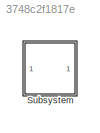
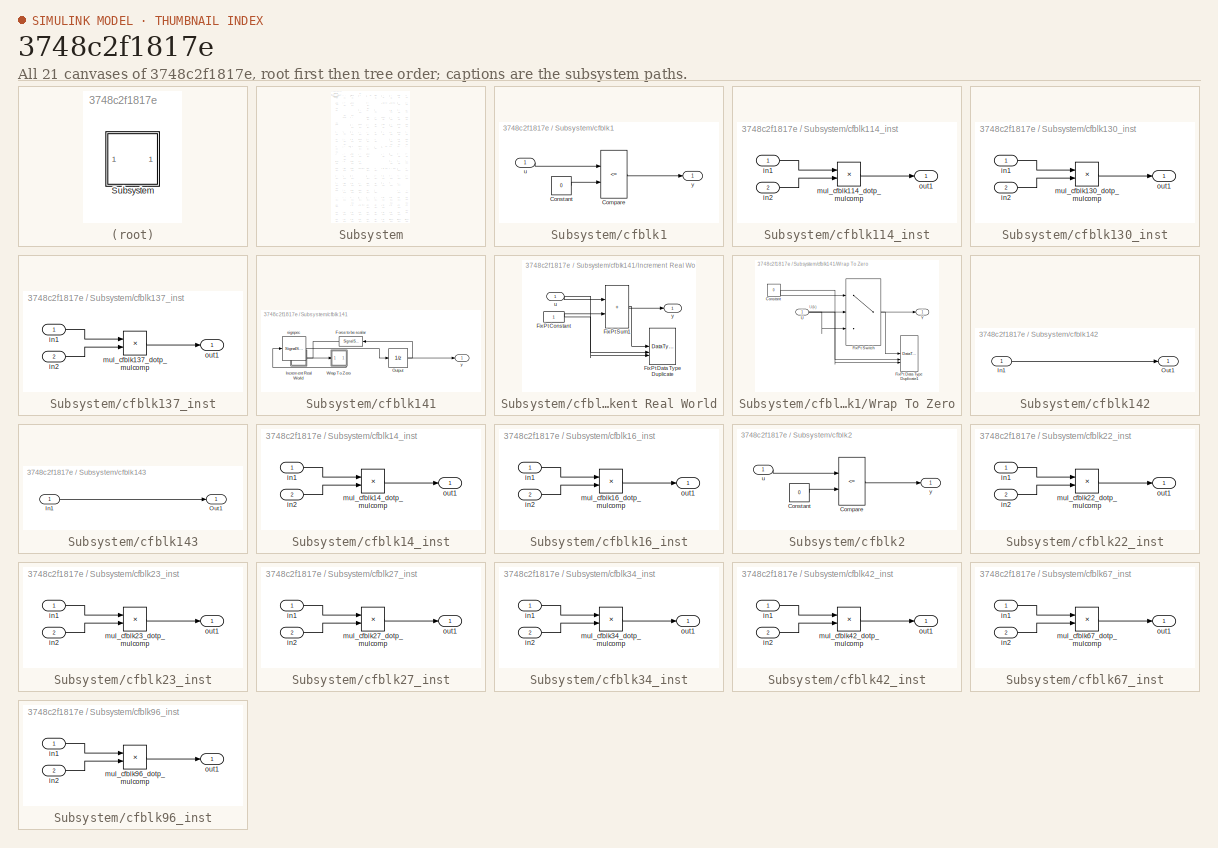
[diagram: thumbnail index - all 21 canvases of the model, root first then tree order]
MODEL slx_3748c2f1817e
KIND model
CONFIG AbsTol = auto
CONFIG EnableMultiTasking = off
CONFIG FixedStep = auto
CONFIG MaxStep = auto
CONFIG MinStep = auto
CONFIG RelTol = 1e-3
CONFIG SampleTimeConstraint = Unconstrained
CONFIG SolverName = VariableStepAuto
CONFIG StartTime = 0.0
CONFIG StopTime = 10.0
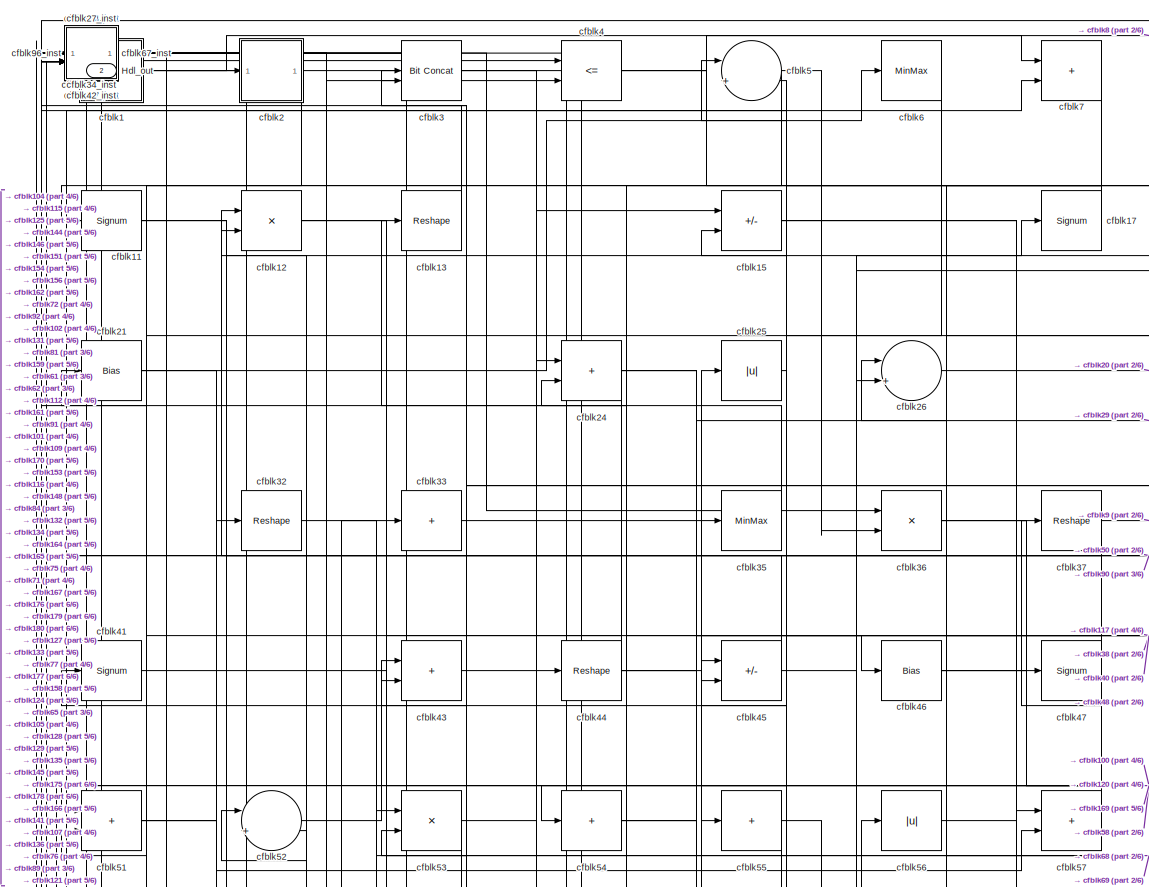
[diagram: Subsystem - part 1/6, top center region]
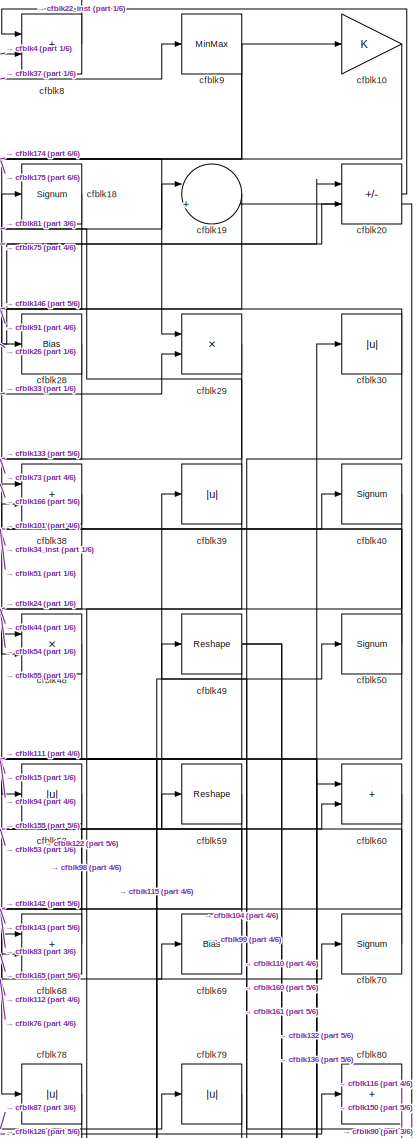
[diagram: Subsystem - part 2/6, top right region]
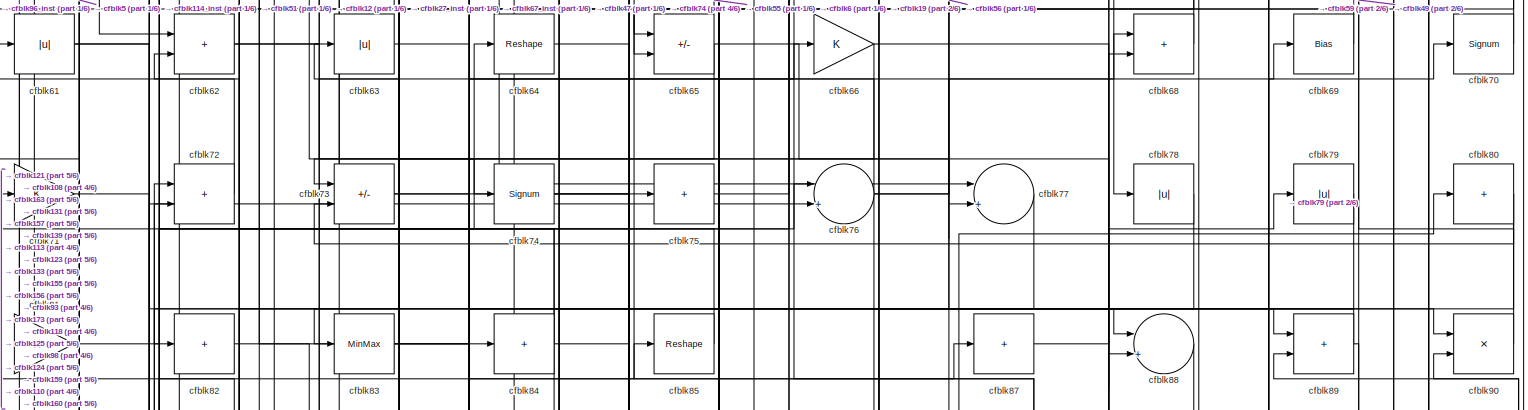
[diagram: Subsystem - part 3/6, full width, middle band]
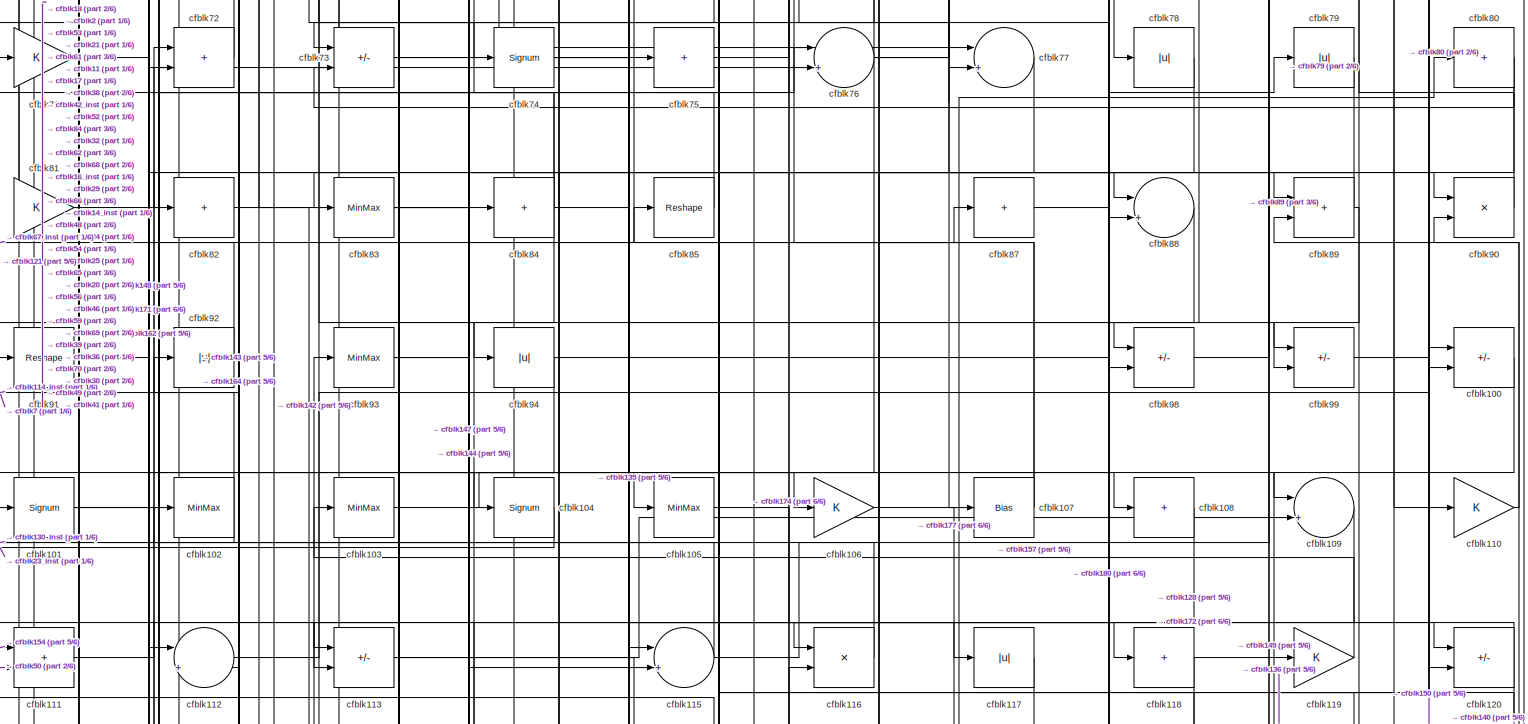
[diagram: Subsystem - part 4/6, full width, middle band]
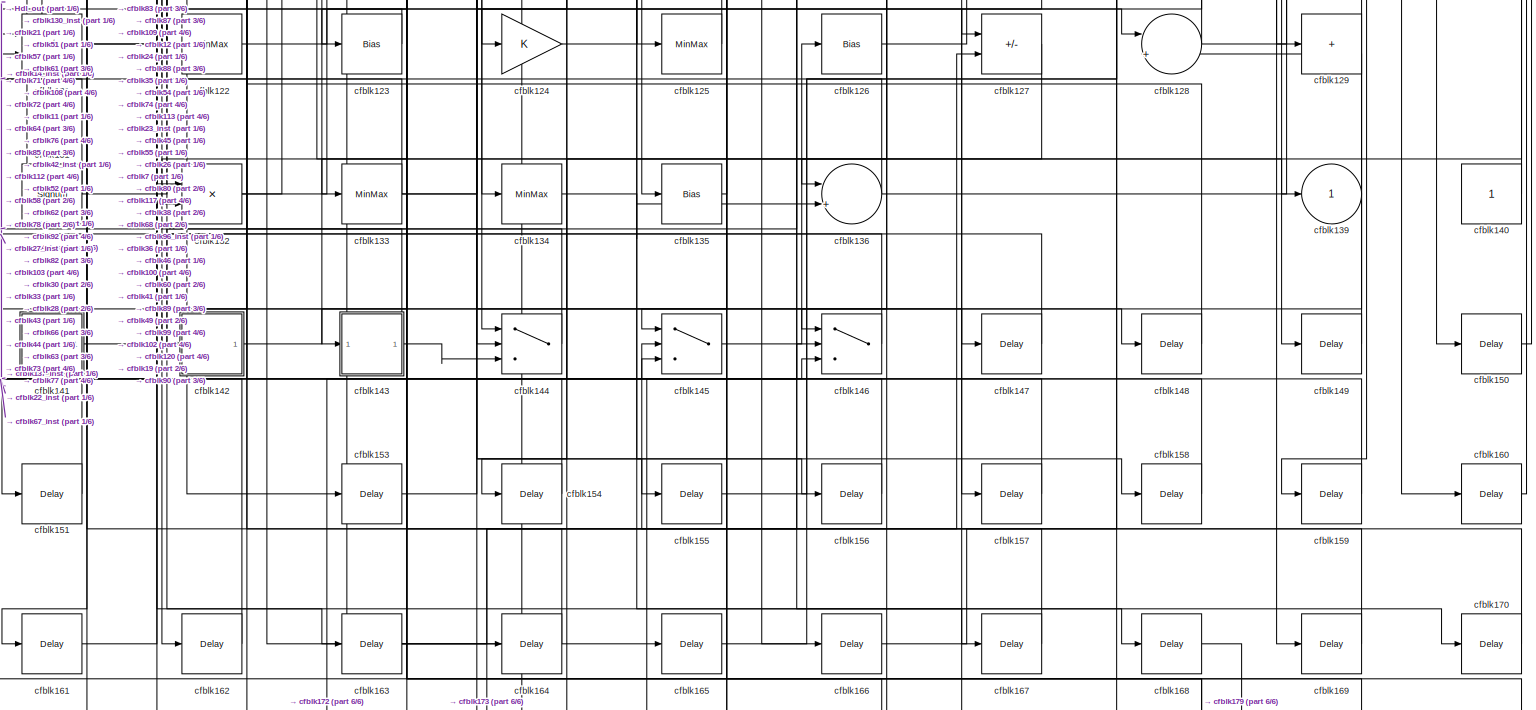
[diagram: Subsystem - part 5/6, full width, bottom band]
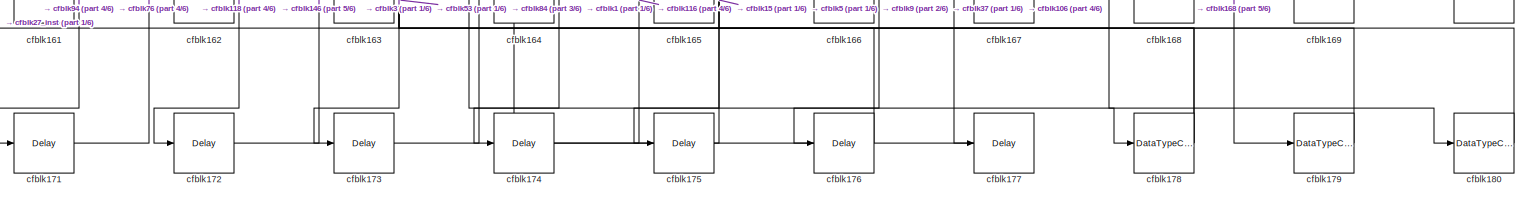
[diagram: Subsystem - part 6/6, full width, bottom band]
BLOCK [SubSystem] Subsystem
BLOCK [Outport] Subsystem/Hdl_out
  OutDataTypeStr = uint8
  Port = 2
  SampleTime = 1
BLOCK [SubSystem] Subsystem/cfblk1
BLOCK [RelationalOperator] Subsystem/cfblk1/Compare
  Operator = <=
  OutDataTypeStr = fixdt(0, 8)
BLOCK [Constant] Subsystem/cfblk1/Constant
  DisableCoverage = on
  OutDataTypeStr = Inherit: Inherit via back propagation
  PreserveConstantTs = on
  SampleTime = -1
  Value = 0
BLOCK [Inport] Subsystem/cfblk1/u
  OutDataTypeStr = uint8
  SampleTime = 1
BLOCK [Outport] Subsystem/cfblk1/y
  SampleTime = 1
BLOCK [Gain] Subsystem/cfblk10
  OutDataTypeStr = uint8
BLOCK [Sum] Subsystem/cfblk100
  IconShape = rectangular
  Inputs = +-
  OutDataTypeStr = uint8
BLOCK [Signum] Subsystem/cfblk101
BLOCK [MinMax] Subsystem/cfblk102
  OutDataTypeStr = uint8
BLOCK [MinMax] Subsystem/cfblk103
  OutDataTypeStr = uint8
BLOCK [Signum] Subsystem/cfblk104
BLOCK [MinMax] Subsystem/cfblk105
  OutDataTypeStr = uint8
BLOCK [Gain] Subsystem/cfblk106
  OutDataTypeStr = uint8
BLOCK [Bias] Subsystem/cfblk107
  Bias = 0.0
  SaturateOnIntegerOverflow = off
BLOCK [Sum] Subsystem/cfblk108
  IconShape = rectangular
  Inputs = +
  OutDataTypeStr = uint8
BLOCK [Sum] Subsystem/cfblk109
  Inputs = |++
  OutDataTypeStr = uint8
BLOCK [Signum] Subsystem/cfblk11
BLOCK [Gain] Subsystem/cfblk110
  OutDataTypeStr = uint8
BLOCK [Sum] Subsystem/cfblk111
  IconShape = rectangular
  OutDataTypeStr = uint8
BLOCK [Sum] Subsystem/cfblk112
  Inputs = |++
  OutDataTypeStr = uint8
BLOCK [Sum] Subsystem/cfblk113
  IconShape = rectangular
  Inputs = +-
  OutDataTypeStr = uint8
BLOCK [SubSystem] Subsystem/cfblk114_inst
BLOCK [Inport] Subsystem/cfblk114_inst/in1
  OutDataTypeStr = uint8
  SampleTime = 1
BLOCK [Inport] Subsystem/cfblk114_inst/in2
  OutDataTypeStr = uint8
  Port = 2
  SampleTime = 1
BLOCK [Product] Subsystem/cfblk114_inst/mul_cfblk114_dotp_mulcomp
  Inputs = **
  OutDataTypeStr = uint8
  SampleTime = 1
BLOCK [Outport] Subsystem/cfblk114_inst/out1
  OutDataTypeStr = uint8
  SampleTime = 1
BLOCK [Sum] Subsystem/cfblk115
  Inputs = |++
  OutDataTypeStr = uint8
BLOCK [Product] Subsystem/cfblk116
  Inputs = */
  OutDataTypeStr = uint8
  RndMeth = Zero
  SaturateOnIntegerOverflow = on
BLOCK [Abs] Subsystem/cfblk117
  OutDataTypeStr = uint8
  SaturateOnIntegerOverflow = off
BLOCK [Sum] Subsystem/cfblk118
  IconShape = rectangular
  Inputs = +
  OutDataTypeStr = uint8
BLOCK [Gain] Subsystem/cfblk119
  OutDataTypeStr = uint8
BLOCK [Product] Subsystem/cfblk12
  Inputs = */
  OutDataTypeStr = uint8
  RndMeth = Zero
  SaturateOnIntegerOverflow = on
BLOCK [Sum] Subsystem/cfblk120
  IconShape = rectangular
  Inputs = +-
  OutDataTypeStr = uint8
BLOCK [Sum] Subsystem/cfblk121
  IconShape = rectangular
  Inputs = +-
  OutDataTypeStr = uint8
BLOCK [MinMax] Subsystem/cfblk122
  OutDataTypeStr = uint8
BLOCK [Bias] Subsystem/cfblk123
  Bias = 0.0
  SaturateOnIntegerOverflow = off
BLOCK [Gain] Subsystem/cfblk124
  OutDataTypeStr = uint8
BLOCK [MinMax] Subsystem/cfblk125
  OutDataTypeStr = uint8
BLOCK [Bias] Subsystem/cfblk126
  Bias = 0.0
  SaturateOnIntegerOverflow = off
BLOCK [Sum] Subsystem/cfblk127
  IconShape = rectangular
  Inputs = +-
  OutDataTypeStr = uint8
BLOCK [Sum] Subsystem/cfblk128
  Inputs = |++
  OutDataTypeStr = uint8
BLOCK [Sum] Subsystem/cfblk129
  IconShape = rectangular
  Inputs = +
  OutDataTypeStr = uint8
BLOCK [Reshape] Subsystem/cfblk13
BLOCK [SubSystem] Subsystem/cfblk130_inst
BLOCK [Inport] Subsystem/cfblk130_inst/in1
  OutDataTypeStr = uint8
  SampleTime = 1
BLOCK [Inport] Subsystem/cfblk130_inst/in2
  OutDataTypeStr = uint8
  Port = 2
  SampleTime = 1
BLOCK [Product] Subsystem/cfblk130_inst/mul_cfblk130_dotp_mulcomp
  Inputs = **
  OutDataTypeStr = uint8
  SampleTime = 1
BLOCK [Outport] Subsystem/cfblk130_inst/out1
  OutDataTypeStr = uint8
  SampleTime = 1
BLOCK [Signum] Subsystem/cfblk131
BLOCK [Product] Subsystem/cfblk132
  Inputs = */
  OutDataTypeStr = uint8
  RndMeth = Zero
  SaturateOnIntegerOverflow = on
BLOCK [MinMax] Subsystem/cfblk133
  OutDataTypeStr = uint8
BLOCK [MinMax] Subsystem/cfblk134
  OutDataTypeStr = uint8
BLOCK [Bias] Subsystem/cfblk135
  Bias = 0.0
  SaturateOnIntegerOverflow = off
BLOCK [Sum] Subsystem/cfblk136
  Inputs = |++
  OutDataTypeStr = uint8
BLOCK [SubSystem] Subsystem/cfblk137_inst
BLOCK [Inport] Subsystem/cfblk137_inst/in1
  OutDataTypeStr = uint8
  SampleTime = 1
BLOCK [Inport] Subsystem/cfblk137_inst/in2
  OutDataTypeStr = uint8
  Port = 2
  SampleTime = 1
BLOCK [Product] Subsystem/cfblk137_inst/mul_cfblk137_dotp_mulcomp
  Inputs = **
  OutDataTypeStr = uint8
  SampleTime = 1
BLOCK [Outport] Subsystem/cfblk137_inst/out1
  OutDataTypeStr = uint8
  SampleTime = 1
BLOCK [Outport] Subsystem/cfblk139
  OutDataTypeStr = uint8
  SampleTime = 1
  VectorParamsAs1DForOutWhenUnconnected = off
BLOCK [Constant] Subsystem/cfblk140
  OutDataTypeStr = uint8
  SampleTime = -1
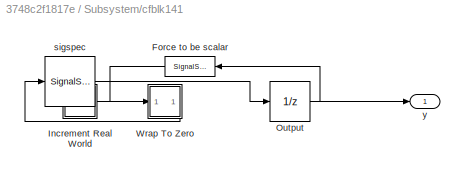
BLOCK [SubSystem] Subsystem/cfblk141
BLOCK [SignalSpecification] Subsystem/cfblk141/Force to be scalar
  Dimensions = 1
  DisableCoverage = on
BLOCK [SubSystem] Subsystem/cfblk141/Increment Real World
BLOCK [Constant] Subsystem/cfblk141/Increment Real World/FixPt Constant
  DisableCoverage = on
  OutDataTypeStr = Inherit: Inherit via back propagation
  SampleTime = -1
BLOCK [DataTypeDuplicate] Subsystem/cfblk141/Increment Real World/FixPt Data Type Duplicate
  DisableCoverage = on
  NumInputPorts = 3
BLOCK [Sum] Subsystem/cfblk141/Increment Real World/FixPt Sum1
  IconShape = rectangular
  InputSameDT = on
  LockScale = on
  OutDataTypeStr = Inherit: Inherit via back propagation
BLOCK [Inport] Subsystem/cfblk141/Increment Real World/u
  OutDataTypeStr = uint16
  SampleTime = 1
BLOCK [Outport] Subsystem/cfblk141/Increment Real World/y
  SampleTime = 1
BLOCK [UnitDelay] Subsystem/cfblk141/Output
  HasFrameUpgradeWarning = on
  InitialCondition = 0.0
  SampleTime = tsamp
BLOCK [SubSystem] Subsystem/cfblk141/Wrap To Zero
BLOCK [Constant] Subsystem/cfblk141/Wrap To Zero/Constant
  DisableCoverage = on
  OutDataTypeStr = Inherit: Inherit via back propagation
  SampleTime = -1
  Value = 0
BLOCK [DataTypeDuplicate] Subsystem/cfblk141/Wrap To Zero/FixPt Data Type Duplicate1
  DisableCoverage = on
  NumInputPorts = 3
BLOCK [Switch] Subsystem/cfblk141/Wrap To Zero/FixPt Switch
  Criteria = u2 > Threshold
  InputSameDT = off
  OutDataTypeStr = Inherit: Inherit via back propagation
  SaturateOnIntegerOverflow = off
  Threshold = Threshold
  ZeroCross = off
BLOCK [Inport] Subsystem/cfblk141/Wrap To Zero/U
  OutDataTypeStr = uint16
  SampleTime = 1
BLOCK [Outport] Subsystem/cfblk141/Wrap To Zero/Y
  SampleTime = 1
BLOCK [SignalSpecification] Subsystem/cfblk141/sigspec
  Dimensions = 1
  OutDataTypeStr = uint16
BLOCK [Outport] Subsystem/cfblk141/y
  SampleTime = 1
BLOCK [SubSystem] Subsystem/cfblk142
BLOCK [Inport] Subsystem/cfblk142/In1
  OutDataTypeStr = uint8
  PortDimensions = 1
  SampleTime = 1
BLOCK [Outport] Subsystem/cfblk142/Out1
  SampleTime = 1
BLOCK [SubSystem] Subsystem/cfblk143
BLOCK [Inport] Subsystem/cfblk143/In1
  OutDataTypeStr = uint8
  PortDimensions = 1
  SampleTime = 1
BLOCK [Outport] Subsystem/cfblk143/Out1
  SampleTime = 1
BLOCK [Switch] Subsystem/cfblk144
  InputSameDT = off
  OutDataTypeStr = uint8
  SaturateOnIntegerOverflow = off
BLOCK [Switch] Subsystem/cfblk145
  InputSameDT = off
  OutDataTypeStr = uint8
  SaturateOnIntegerOverflow = off
BLOCK [Switch] Subsystem/cfblk146
  InputSameDT = off
  OutDataTypeStr = uint8
  SaturateOnIntegerOverflow = off
BLOCK [Delay] Subsystem/cfblk147
  InputPortMap = u0
  SampleTime = 1
BLOCK [Delay] Subsystem/cfblk148
  InputPortMap = u0
  SampleTime = 1
BLOCK [Delay] Subsystem/cfblk149
  InputPortMap = u0
  SampleTime = 1
BLOCK [SubSystem] Subsystem/cfblk14_inst
BLOCK [Inport] Subsystem/cfblk14_inst/in1
  OutDataTypeStr = uint8
  SampleTime = 1
BLOCK [Inport] Subsystem/cfblk14_inst/in2
  OutDataTypeStr = uint8
  Port = 2
  SampleTime = 1
BLOCK [Product] Subsystem/cfblk14_inst/mul_cfblk14_dotp_mulcomp
  Inputs = **
  OutDataTypeStr = uint8
  SampleTime = 1
BLOCK [Outport] Subsystem/cfblk14_inst/out1
  OutDataTypeStr = uint8
  SampleTime = 1
BLOCK [Sum] Subsystem/cfblk15
  IconShape = rectangular
  Inputs = +-
  OutDataTypeStr = uint8
BLOCK [Delay] Subsystem/cfblk150
  InputPortMap = u0
  SampleTime = 1
BLOCK [Delay] Subsystem/cfblk151
  InputPortMap = u0
  SampleTime = 1
BLOCK [Delay] Subsystem/cfblk153
  InputPortMap = u0
  SampleTime = 1
BLOCK [Delay] Subsystem/cfblk154
  InputPortMap = u0
  SampleTime = 1
BLOCK [Delay] Subsystem/cfblk155
  InputPortMap = u0
  SampleTime = 1
BLOCK [Delay] Subsystem/cfblk156
  InputPortMap = u0
  SampleTime = 1
BLOCK [Delay] Subsystem/cfblk157
  InputPortMap = u0
  SampleTime = 1
BLOCK [Delay] Subsystem/cfblk158
  InputPortMap = u0
  SampleTime = 1
BLOCK [Delay] Subsystem/cfblk159
  InputPortMap = u0
  SampleTime = 1
BLOCK [Delay] Subsystem/cfblk160
  InputPortMap = u0
  SampleTime = 1
BLOCK [Delay] Subsystem/cfblk161
  InputPortMap = u0
  SampleTime = 1
BLOCK [Delay] Subsystem/cfblk162
  InputPortMap = u0
  SampleTime = 1
BLOCK [Delay] Subsystem/cfblk163
  InputPortMap = u0
  SampleTime = 1
BLOCK [Delay] Subsystem/cfblk164
  InputPortMap = u0
  SampleTime = 1
BLOCK [Delay] Subsystem/cfblk165
  InputPortMap = u0
  SampleTime = 1
BLOCK [Delay] Subsystem/cfblk166
  InputPortMap = u0
  SampleTime = 1
BLOCK [Delay] Subsystem/cfblk167
  InputPortMap = u0
  SampleTime = 1
BLOCK [Delay] Subsystem/cfblk168
  InputPortMap = u0
  SampleTime = 1
BLOCK [Delay] Subsystem/cfblk169
  InputPortMap = u0
  SampleTime = 1
BLOCK [SubSystem] Subsystem/cfblk16_inst
BLOCK [Inport] Subsystem/cfblk16_inst/in1
  OutDataTypeStr = uint8
  SampleTime = 1
BLOCK [Inport] Subsystem/cfblk16_inst/in2
  OutDataTypeStr = uint8
  Port = 2
  SampleTime = 1
BLOCK [Product] Subsystem/cfblk16_inst/mul_cfblk16_dotp_mulcomp
  Inputs = **
  OutDataTypeStr = uint8
  SampleTime = 1
BLOCK [Outport] Subsystem/cfblk16_inst/out1
  OutDataTypeStr = uint8
  SampleTime = 1
BLOCK [Signum] Subsystem/cfblk17
BLOCK [Delay] Subsystem/cfblk170
  InputPortMap = u0
  SampleTime = 1
BLOCK [Delay] Subsystem/cfblk171
  InputPortMap = u0
  SampleTime = 1
BLOCK [Delay] Subsystem/cfblk172
  InputPortMap = u0
  SampleTime = 1
BLOCK [Delay] Subsystem/cfblk173
  InputPortMap = u0
  SampleTime = 1
BLOCK [Delay] Subsystem/cfblk174
  InputPortMap = u0
  SampleTime = 1
BLOCK [Delay] Subsystem/cfblk175
  InputPortMap = u0
  SampleTime = 1
BLOCK [Delay] Subsystem/cfblk176
  InputPortMap = u0
  SampleTime = 1
BLOCK [Delay] Subsystem/cfblk177
  InputPortMap = u0
  SampleTime = 1
BLOCK [DataTypeConversion] Subsystem/cfblk178
  OutDataTypeStr = uint8
  RndMeth = Floor
  SaturateOnIntegerOverflow = off
BLOCK [DataTypeConversion] Subsystem/cfblk179
  OutDataTypeStr = uint8
  RndMeth = Floor
  SaturateOnIntegerOverflow = off
BLOCK [Signum] Subsystem/cfblk18
BLOCK [DataTypeConversion] Subsystem/cfblk180
  OutDataTypeStr = uint8
  RndMeth = Floor
  SaturateOnIntegerOverflow = off
BLOCK [Sum] Subsystem/cfblk19
  Inputs = |++
  OutDataTypeStr = uint8
BLOCK [SubSystem] Subsystem/cfblk2
BLOCK [RelationalOperator] Subsystem/cfblk2/Compare
  Operator = <=
  OutDataTypeStr = fixdt(0, 8)
BLOCK [Constant] Subsystem/cfblk2/Constant
  DisableCoverage = on
  OutDataTypeStr = Inherit: Inherit via back propagation
  PreserveConstantTs = on
  SampleTime = -1
  Value = 0
BLOCK [Inport] Subsystem/cfblk2/u
  OutDataTypeStr = uint8
  SampleTime = 1
BLOCK [Outport] Subsystem/cfblk2/y
  SampleTime = 1
BLOCK [Sum] Subsystem/cfblk20
  IconShape = rectangular
  Inputs = +-
  OutDataTypeStr = uint8
BLOCK [Bias] Subsystem/cfblk21
  Bias = 0.0
  SaturateOnIntegerOverflow = off
BLOCK [SubSystem] Subsystem/cfblk22_inst
BLOCK [Inport] Subsystem/cfblk22_inst/in1
  OutDataTypeStr = uint8
  SampleTime = 1
BLOCK [Inport] Subsystem/cfblk22_inst/in2
  OutDataTypeStr = uint8
  Port = 2
  SampleTime = 1
BLOCK [Product] Subsystem/cfblk22_inst/mul_cfblk22_dotp_mulcomp
  Inputs = **
  OutDataTypeStr = uint8
  SampleTime = 1
BLOCK [Outport] Subsystem/cfblk22_inst/out1
  OutDataTypeStr = uint8
  SampleTime = 1
BLOCK [SubSystem] Subsystem/cfblk23_inst
BLOCK [Inport] Subsystem/cfblk23_inst/in1
  OutDataTypeStr = uint8
  SampleTime = 1
BLOCK [Inport] Subsystem/cfblk23_inst/in2
  OutDataTypeStr = uint8
  Port = 2
  SampleTime = 1
BLOCK [Product] Subsystem/cfblk23_inst/mul_cfblk23_dotp_mulcomp
  Inputs = **
  OutDataTypeStr = uint8
  SampleTime = 1
BLOCK [Outport] Subsystem/cfblk23_inst/out1
  OutDataTypeStr = uint8
  SampleTime = 1
BLOCK [Sum] Subsystem/cfblk24
  IconShape = rectangular
  OutDataTypeStr = uint8
BLOCK [Abs] Subsystem/cfblk25
  OutDataTypeStr = uint8
  SaturateOnIntegerOverflow = off
BLOCK [Sum] Subsystem/cfblk26
  Inputs = |++
  OutDataTypeStr = uint8
BLOCK [SubSystem] Subsystem/cfblk27_inst
BLOCK [Inport] Subsystem/cfblk27_inst/in1
  OutDataTypeStr = uint8
  SampleTime = 1
BLOCK [Inport] Subsystem/cfblk27_inst/in2
  OutDataTypeStr = uint8
  Port = 2
  SampleTime = 1
BLOCK [Product] Subsystem/cfblk27_inst/mul_cfblk27_dotp_mulcomp
  Inputs = **
  OutDataTypeStr = uint8
  SampleTime = 1
BLOCK [Outport] Subsystem/cfblk27_inst/out1
  OutDataTypeStr = uint8
  SampleTime = 1
BLOCK [Bias] Subsystem/cfblk28
  Bias = 0.0
  SaturateOnIntegerOverflow = off
BLOCK [Product] Subsystem/cfblk29
  Inputs = */
  OutDataTypeStr = uint8
  RndMeth = Zero
  SaturateOnIntegerOverflow = on
BLOCK [Reference] Subsystem/cfblk3  REF=hdlsllib/Logic and Bit
Operations/Bit Concat
  SourceBlock = hdlsllib/Logic and Bit\nOperations/Bit Concat
  SourceType = Bit Concat
BLOCK [Abs] Subsystem/cfblk30
  OutDataTypeStr = uint8
  SaturateOnIntegerOverflow = off
BLOCK [Reshape] Subsystem/cfblk32
BLOCK [Sum] Subsystem/cfblk33
  IconShape = rectangular
  Inputs = +
  OutDataTypeStr = uint8
BLOCK [SubSystem] Subsystem/cfblk34_inst
BLOCK [Inport] Subsystem/cfblk34_inst/in1
  OutDataTypeStr = uint8
  SampleTime = 1
BLOCK [Inport] Subsystem/cfblk34_inst/in2
  OutDataTypeStr = uint8
  Port = 2
  SampleTime = 1
BLOCK [Product] Subsystem/cfblk34_inst/mul_cfblk34_dotp_mulcomp
  Inputs = **
  OutDataTypeStr = uint8
  SampleTime = 1
BLOCK [Outport] Subsystem/cfblk34_inst/out1
  OutDataTypeStr = uint8
  SampleTime = 1
BLOCK [MinMax] Subsystem/cfblk35
  OutDataTypeStr = uint8
BLOCK [Product] Subsystem/cfblk36
  Inputs = */
  OutDataTypeStr = uint8
  RndMeth = Zero
  SaturateOnIntegerOverflow = on
BLOCK [Reshape] Subsystem/cfblk37
BLOCK [Sum] Subsystem/cfblk38
  IconShape = rectangular
  OutDataTypeStr = uint8
BLOCK [Abs] Subsystem/cfblk39
  OutDataTypeStr = uint8
  SaturateOnIntegerOverflow = off
BLOCK [RelationalOperator] Subsystem/cfblk4
  InputSameDT = off
  Operator = <=
  OutDataTypeStr = boolean
BLOCK [Signum] Subsystem/cfblk40
BLOCK [Signum] Subsystem/cfblk41
BLOCK [SubSystem] Subsystem/cfblk42_inst
BLOCK [Inport] Subsystem/cfblk42_inst/in1
  OutDataTypeStr = uint8
  SampleTime = 1
BLOCK [Inport] Subsystem/cfblk42_inst/in2
  OutDataTypeStr = uint8
  Port = 2
  SampleTime = 1
BLOCK [Product] Subsystem/cfblk42_inst/mul_cfblk42_dotp_mulcomp
  Inputs = **
  OutDataTypeStr = uint8
  SampleTime = 1
BLOCK [Outport] Subsystem/cfblk42_inst/out1
  OutDataTypeStr = uint8
  SampleTime = 1
BLOCK [Sum] Subsystem/cfblk43
  IconShape = rectangular
  OutDataTypeStr = uint8
BLOCK [Reshape] Subsystem/cfblk44
BLOCK [Sum] Subsystem/cfblk45
  IconShape = rectangular
  Inputs = +-
  OutDataTypeStr = uint8
BLOCK [Bias] Subsystem/cfblk46
  Bias = 0.0
  SaturateOnIntegerOverflow = off
BLOCK [Signum] Subsystem/cfblk47
BLOCK [Product] Subsystem/cfblk48
  Inputs = */
  OutDataTypeStr = uint8
  RndMeth = Zero
  SaturateOnIntegerOverflow = on
BLOCK [Reshape] Subsystem/cfblk49
BLOCK [Sum] Subsystem/cfblk5
  Inputs = |++
  OutDataTypeStr = uint8
BLOCK [Signum] Subsystem/cfblk50
BLOCK [Sum] Subsystem/cfblk51
  IconShape = rectangular
  OutDataTypeStr = uint8
BLOCK [Sum] Subsystem/cfblk52
  Inputs = |++
  OutDataTypeStr = uint8
BLOCK [Product] Subsystem/cfblk53
  Inputs = */
  OutDataTypeStr = uint8
  RndMeth = Zero
  SaturateOnIntegerOverflow = on
BLOCK [Sum] Subsystem/cfblk54
  IconShape = rectangular
  Inputs = +
  OutDataTypeStr = uint8
BLOCK [Sum] Subsystem/cfblk55
  IconShape = rectangular
  Inputs = +
  OutDataTypeStr = uint8
BLOCK [Abs] Subsystem/cfblk56
  OutDataTypeStr = uint8
  SaturateOnIntegerOverflow = off
BLOCK [Sum] Subsystem/cfblk57
  IconShape = rectangular
  OutDataTypeStr = uint8
BLOCK [Abs] Subsystem/cfblk58
  OutDataTypeStr = uint8
  SaturateOnIntegerOverflow = off
BLOCK [Reshape] Subsystem/cfblk59
BLOCK [MinMax] Subsystem/cfblk6
  OutDataTypeStr = uint8
BLOCK [Sum] Subsystem/cfblk60
  IconShape = rectangular
  OutDataTypeStr = uint8
BLOCK [Abs] Subsystem/cfblk61
  OutDataTypeStr = uint8
  SaturateOnIntegerOverflow = off
BLOCK [Sum] Subsystem/cfblk62
  IconShape = rectangular
  OutDataTypeStr = uint8
BLOCK [Abs] Subsystem/cfblk63
  OutDataTypeStr = uint8
  SaturateOnIntegerOverflow = off
BLOCK [Reshape] Subsystem/cfblk64
BLOCK [Sum] Subsystem/cfblk65
  IconShape = rectangular
  Inputs = +-
  OutDataTypeStr = uint8
BLOCK [Gain] Subsystem/cfblk66
  OutDataTypeStr = uint8
BLOCK [SubSystem] Subsystem/cfblk67_inst
BLOCK [Inport] Subsystem/cfblk67_inst/in1
  OutDataTypeStr = uint8
  SampleTime = 1
BLOCK [Inport] Subsystem/cfblk67_inst/in2
  OutDataTypeStr = uint8
  Port = 2
  SampleTime = 1
BLOCK [Product] Subsystem/cfblk67_inst/mul_cfblk67_dotp_mulcomp
  Inputs = **
  OutDataTypeStr = uint8
  SampleTime = 1
BLOCK [Outport] Subsystem/cfblk67_inst/out1
  OutDataTypeStr = uint8
  SampleTime = 1
BLOCK [Sum] Subsystem/cfblk68
  IconShape = rectangular
  OutDataTypeStr = uint8
BLOCK [Bias] Subsystem/cfblk69
  Bias = 0.0
  SaturateOnIntegerOverflow = off
BLOCK [Sum] Subsystem/cfblk7
  IconShape = rectangular
  OutDataTypeStr = uint8
BLOCK [Signum] Subsystem/cfblk70
BLOCK [Gain] Subsystem/cfblk71
  OutDataTypeStr = uint8
BLOCK [Sum] Subsystem/cfblk72
  IconShape = rectangular
  OutDataTypeStr = uint8
BLOCK [Sum] Subsystem/cfblk73
  IconShape = rectangular
  Inputs = +-
  OutDataTypeStr = uint8
BLOCK [Signum] Subsystem/cfblk74
BLOCK [Sum] Subsystem/cfblk75
  IconShape = rectangular
  Inputs = +
  OutDataTypeStr = uint8
BLOCK [Sum] Subsystem/cfblk76
  Inputs = |++
  OutDataTypeStr = uint8
BLOCK [Sum] Subsystem/cfblk77
  Inputs = |++
  OutDataTypeStr = uint8
BLOCK [Abs] Subsystem/cfblk78
  OutDataTypeStr = uint8
  SaturateOnIntegerOverflow = off
BLOCK [Abs] Subsystem/cfblk79
  OutDataTypeStr = uint8
  SaturateOnIntegerOverflow = off
BLOCK [Sum] Subsystem/cfblk8
  IconShape = rectangular
  OutDataTypeStr = uint8
BLOCK [Sum] Subsystem/cfblk80
  IconShape = rectangular
  Inputs = +
  OutDataTypeStr = uint8
BLOCK [Gain] Subsystem/cfblk81
  OutDataTypeStr = uint8
BLOCK [Sum] Subsystem/cfblk82
  IconShape = rectangular
  Inputs = +
  OutDataTypeStr = uint8
BLOCK [MinMax] Subsystem/cfblk83
  OutDataTypeStr = uint8
BLOCK [Sum] Subsystem/cfblk84
  IconShape = rectangular
  Inputs = +
  OutDataTypeStr = uint8
BLOCK [Reshape] Subsystem/cfblk85
BLOCK [Sum] Subsystem/cfblk87
  IconShape = rectangular
  Inputs = +
  OutDataTypeStr = uint8
BLOCK [Sum] Subsystem/cfblk88
  Inputs = |++
  OutDataTypeStr = uint8
BLOCK [Sum] Subsystem/cfblk89
  IconShape = rectangular
  OutDataTypeStr = uint8
BLOCK [MinMax] Subsystem/cfblk9
  OutDataTypeStr = uint8
BLOCK [Product] Subsystem/cfblk90
  Inputs = */
  OutDataTypeStr = uint8
  RndMeth = Zero
  SaturateOnIntegerOverflow = on
BLOCK [Reshape] Subsystem/cfblk91
BLOCK [Abs] Subsystem/cfblk92
  OutDataTypeStr = uint8
  SaturateOnIntegerOverflow = off
BLOCK [MinMax] Subsystem/cfblk93
  OutDataTypeStr = uint8
BLOCK [Abs] Subsystem/cfblk94
  OutDataTypeStr = uint8
  SaturateOnIntegerOverflow = off
BLOCK [SubSystem] Subsystem/cfblk96_inst
BLOCK [Inport] Subsystem/cfblk96_inst/in1
  OutDataTypeStr = uint8
  SampleTime = 1
BLOCK [Inport] Subsystem/cfblk96_inst/in2
  OutDataTypeStr = uint8
  Port = 2
  SampleTime = 1
BLOCK [Product] Subsystem/cfblk96_inst/mul_cfblk96_dotp_mulcomp
  Inputs = **
  OutDataTypeStr = uint8
  SampleTime = 1
BLOCK [Outport] Subsystem/cfblk96_inst/out1
  OutDataTypeStr = uint8
  SampleTime = 1
BLOCK [Sum] Subsystem/cfblk98
  IconShape = rectangular
  Inputs = +-
  OutDataTypeStr = uint8
BLOCK [Sum] Subsystem/cfblk99
  IconShape = rectangular
  Inputs = +-
  OutDataTypeStr = uint8
ANNOTATION Subsystem/cfblk141/Wrap To Zero: U(k)
LINE Subsystem/cfblk100:1 -> Subsystem/cfblk149:1
NET Subsystem/cfblk101:1 -> Subsystem/cfblk17:1, Subsystem/cfblk38:2
NET Subsystem/cfblk102:1 -> Subsystem/cfblk114_inst:2, Subsystem/cfblk7:2
LINE Subsystem/cfblk103:1 -> Subsystem/cfblk106:1
LINE Subsystem/cfblk104:1 -> Subsystem/cfblk23_inst:1
LINE Subsystem/cfblk105:1 -> Subsystem/cfblk120:1
LINE Subsystem/cfblk106:1 -> Subsystem/cfblk177:1
NET Subsystem/cfblk107:1 -> Subsystem/cfblk25:1, Subsystem/cfblk56:1
LINE Subsystem/cfblk108:1 -> Subsystem/cfblk162:1
LINE Subsystem/cfblk109:1 -> Subsystem/cfblk144:1
LINE Subsystem/cfblk10:1 -> Subsystem/cfblk78:1
LINE Subsystem/cfblk110:1 -> Subsystem/cfblk89:2
LINE Subsystem/cfblk111:1 -> Subsystem/cfblk72:1
LINE Subsystem/cfblk112:1 -> Subsystem/cfblk68:1
NET Subsystem/cfblk113:1 -> Subsystem/cfblk109:2, Subsystem/cfblk135:1
LINE Subsystem/cfblk114_inst/in1:1 -> Subsystem/cfblk114_inst/mul_cfblk114_dotp_mulcomp:1
LINE Subsystem/cfblk114_inst/in2:1 -> Subsystem/cfblk114_inst/mul_cfblk114_dotp_mulcomp:2
LINE Subsystem/cfblk114_inst/mul_cfblk114_dotp_mulcomp:1 -> Subsystem/cfblk114_inst/out1:1
LINE Subsystem/cfblk114_inst:1 -> Subsystem/cfblk62:1
NET Subsystem/cfblk115:1 -> Subsystem/cfblk130_inst:2, Subsystem/cfblk70:1
LINE Subsystem/cfblk116:1 -> Subsystem/cfblk52:1
LINE Subsystem/cfblk117:1 -> Subsystem/cfblk157:1
NET Subsystem/cfblk118:1 -> Subsystem/cfblk119:1, Subsystem/cfblk172:1
LINE Subsystem/cfblk119:1 -> Subsystem/cfblk93:1
NET Subsystem/cfblk11:1 -> Subsystem/cfblk109:1, Subsystem/cfblk170:1
NET Subsystem/cfblk120:1 -> Subsystem/cfblk111:1, Subsystem/cfblk154:1
NET Subsystem/cfblk121:1 -> Subsystem/Hdl_out:1, Subsystem/cfblk76:1, Subsystem/cfblk85:1
LINE Subsystem/cfblk122:1 -> Subsystem/cfblk128:1
LINE Subsystem/cfblk123:1 -> Subsystem/cfblk121:1
LINE Subsystem/cfblk124:1 -> Subsystem/cfblk35:1
LINE Subsystem/cfblk125:1 -> Subsystem/cfblk23_inst:2
LINE Subsystem/cfblk126:1 -> Subsystem/cfblk80:1
LINE Subsystem/cfblk127:1 -> Subsystem/cfblk132:2
NET Subsystem/cfblk128:1 -> Subsystem/cfblk100:1, Subsystem/cfblk96_inst:2
NET Subsystem/cfblk129:1 -> Subsystem/cfblk151:1, Subsystem/cfblk41:1
NET Subsystem/cfblk12:1 -> Subsystem/cfblk134:1, Subsystem/cfblk46:1
LINE Subsystem/cfblk130_inst/in1:1 -> Subsystem/cfblk130_inst/mul_cfblk130_dotp_mulcomp:1
LINE Subsystem/cfblk130_inst/in2:1 -> Subsystem/cfblk130_inst/mul_cfblk130_dotp_mulcomp:2
LINE Subsystem/cfblk130_inst/mul_cfblk130_dotp_mulcomp:1 -> Subsystem/cfblk130_inst/out1:1
LINE Subsystem/cfblk130_inst:1 -> Subsystem/cfblk131:1
NET Subsystem/cfblk131:1 -> Subsystem/cfblk14_inst:2, Subsystem/cfblk64:1
NET Subsystem/cfblk132:1 -> Subsystem/cfblk30:1, Subsystem/cfblk33:1
NET Subsystem/cfblk133:1 -> Subsystem/cfblk21:1, Subsystem/cfblk44:1, Subsystem/cfblk87:1
LINE Subsystem/cfblk134:1 -> Subsystem/cfblk168:1
LINE Subsystem/cfblk135:1 -> Subsystem/cfblk45:2
NET Subsystem/cfblk136:1 -> Subsystem/cfblk60:1, Subsystem/cfblk72:2
LINE Subsystem/cfblk137_inst/in1:1 -> Subsystem/cfblk137_inst/mul_cfblk137_dotp_mulcomp:1
LINE Subsystem/cfblk137_inst/in2:1 -> Subsystem/cfblk137_inst/mul_cfblk137_dotp_mulcomp:2
LINE Subsystem/cfblk137_inst/mul_cfblk137_dotp_mulcomp:1 -> Subsystem/cfblk137_inst/out1:1
LINE Subsystem/cfblk137_inst:1 -> Subsystem/cfblk36:1
LINE Subsystem/cfblk13:1 -> Subsystem/cfblk16_inst:1
LINE Subsystem/cfblk140:1 -> Subsystem/cfblk102:1
LINE Subsystem/cfblk141:1 -> Subsystem/cfblk26:2
LINE Subsystem/cfblk142/In1:1 -> Subsystem/cfblk142/Out1:1
LINE Subsystem/cfblk142:1 -> Subsystem/cfblk103:1
LINE Subsystem/cfblk143/In1:1 -> Subsystem/cfblk143/Out1:1
NET Subsystem/cfblk143:1 -> Subsystem/cfblk144:3, Subsystem/cfblk92:1
LINE Subsystem/cfblk144:1 -> Subsystem/cfblk16_inst:2
LINE Subsystem/cfblk145:1 -> Subsystem/cfblk126:1
LINE Subsystem/cfblk146:1 -> Subsystem/cfblk114_inst:1
LINE Subsystem/cfblk147:1 -> Subsystem/cfblk132:1
LINE Subsystem/cfblk148:1 -> Subsystem/cfblk52:2
LINE Subsystem/cfblk149:1 -> Subsystem/cfblk128:2
LINE Subsystem/cfblk14_inst/in1:1 -> Subsystem/cfblk14_inst/mul_cfblk14_dotp_mulcomp:1
LINE Subsystem/cfblk14_inst/in2:1 -> Subsystem/cfblk14_inst/mul_cfblk14_dotp_mulcomp:2
LINE Subsystem/cfblk14_inst/mul_cfblk14_dotp_mulcomp:1 -> Subsystem/cfblk14_inst/out1:1
LINE Subsystem/cfblk14_inst:1 -> Subsystem/cfblk77:1
LINE Subsystem/cfblk150:1 -> Subsystem/cfblk19:2
LINE Subsystem/cfblk151:1 -> Subsystem/cfblk22_inst:2
LINE Subsystem/cfblk153:1 -> Subsystem/cfblk145:2
LINE Subsystem/cfblk154:1 -> Subsystem/cfblk137_inst:2
LINE Subsystem/cfblk155:1 -> Subsystem/cfblk60:2
LINE Subsystem/cfblk156:1 -> Subsystem/cfblk96_inst:1
LINE Subsystem/cfblk157:1 -> Subsystem/cfblk62:2
LINE Subsystem/cfblk158:1 -> Subsystem/cfblk24:2
LINE Subsystem/cfblk159:1 -> Subsystem/cfblk51:2
NET Subsystem/cfblk15:1 -> Subsystem/cfblk57:1, Subsystem/cfblk58:1
LINE Subsystem/cfblk160:1 -> Subsystem/cfblk90:2
LINE Subsystem/cfblk161:1 -> Subsystem/cfblk57:2
LINE Subsystem/cfblk162:1 -> Subsystem/cfblk67_inst:2
LINE Subsystem/cfblk163:1 -> Subsystem/cfblk127:2
LINE Subsystem/cfblk164:1 -> Subsystem/cfblk112:2
LINE Subsystem/cfblk165:1 -> Subsystem/cfblk68:2
LINE Subsystem/cfblk166:1 -> Subsystem/cfblk38:1
LINE Subsystem/cfblk167:1 -> Subsystem/cfblk43:1
LINE Subsystem/cfblk168:1 -> Subsystem/cfblk179:1
LINE Subsystem/cfblk169:1 -> Subsystem/cfblk121:2
LINE Subsystem/cfblk16_inst/in1:1 -> Subsystem/cfblk16_inst/mul_cfblk16_dotp_mulcomp:1
LINE Subsystem/cfblk16_inst/in2:1 -> Subsystem/cfblk16_inst/mul_cfblk16_dotp_mulcomp:2
LINE Subsystem/cfblk16_inst/mul_cfblk16_dotp_mulcomp:1 -> Subsystem/cfblk16_inst/out1:1
LINE Subsystem/cfblk16_inst:1 -> Subsystem/cfblk75:1
LINE Subsystem/cfblk170:1 -> Subsystem/cfblk145:3
LINE Subsystem/cfblk171:1 -> Subsystem/cfblk76:2
LINE Subsystem/cfblk172:1 -> Subsystem/cfblk146:3
LINE Subsystem/cfblk173:1 -> Subsystem/cfblk146:2
LINE Subsystem/cfblk174:1 -> Subsystem/cfblk116:2
LINE Subsystem/cfblk175:1 -> Subsystem/cfblk15:2
LINE Subsystem/cfblk176:1 -> Subsystem/cfblk53:2
LINE Subsystem/cfblk177:1 -> Subsystem/cfblk1:1
NET Subsystem/cfblk178:1 -> Subsystem/cfblk27_inst:1, Subsystem/cfblk5:2
LINE Subsystem/cfblk179:1 -> Subsystem/cfblk3:1
LINE Subsystem/cfblk17:1 -> Subsystem/cfblk11:1
LINE Subsystem/cfblk180:1 -> Subsystem/cfblk3:2
LINE Subsystem/cfblk18:1 -> Subsystem/cfblk91:1
LINE Subsystem/cfblk19:1 -> Subsystem/cfblk146:1
LINE Subsystem/cfblk1:1 -> Subsystem/cfblk7:1
LINE Subsystem/cfblk20:1 -> Subsystem/cfblk8:1
NET Subsystem/cfblk21:1 -> Subsystem/cfblk112:1, Subsystem/cfblk6:1
LINE Subsystem/cfblk22_inst/in1:1 -> Subsystem/cfblk22_inst/mul_cfblk22_dotp_mulcomp:1
LINE Subsystem/cfblk22_inst/in2:1 -> Subsystem/cfblk22_inst/mul_cfblk22_dotp_mulcomp:2
LINE Subsystem/cfblk22_inst/mul_cfblk22_dotp_mulcomp:1 -> Subsystem/cfblk22_inst/out1:1
LINE Subsystem/cfblk22_inst:1 -> Subsystem/cfblk137_inst:1
LINE Subsystem/cfblk23_inst/in1:1 -> Subsystem/cfblk23_inst/mul_cfblk23_dotp_mulcomp:1
LINE Subsystem/cfblk23_inst/in2:1 -> Subsystem/cfblk23_inst/mul_cfblk23_dotp_mulcomp:2
LINE Subsystem/cfblk23_inst/mul_cfblk23_dotp_mulcomp:1 -> Subsystem/cfblk23_inst/out1:1
LINE Subsystem/cfblk23_inst:1 -> Subsystem/cfblk4:2
NET Subsystem/cfblk24:1 -> Subsystem/cfblk117:1, Subsystem/cfblk48:2, Subsystem/cfblk51:1
LINE Subsystem/cfblk25:1 -> Subsystem/cfblk105:1
LINE Subsystem/cfblk26:1 -> Subsystem/cfblk20:2
LINE Subsystem/cfblk27_inst/in1:1 -> Subsystem/cfblk27_inst/mul_cfblk27_dotp_mulcomp:1
LINE Subsystem/cfblk27_inst/in2:1 -> Subsystem/cfblk27_inst/mul_cfblk27_dotp_mulcomp:2
LINE Subsystem/cfblk27_inst/mul_cfblk27_dotp_mulcomp:1 -> Subsystem/cfblk27_inst/out1:1
NET Subsystem/cfblk27_inst:1 -> Subsystem/cfblk164:1, Subsystem/cfblk165:1, Subsystem/cfblk2:1
LINE Subsystem/cfblk28:1 -> Subsystem/cfblk133:1
LINE Subsystem/cfblk29:1 -> Subsystem/cfblk73:1
LINE Subsystem/cfblk2:1 -> Subsystem/cfblk101:1
NET Subsystem/cfblk30:1 -> Subsystem/cfblk28:1, Subsystem/cfblk99:2
LINE Subsystem/cfblk32:1 -> Subsystem/cfblk77:2
LINE Subsystem/cfblk33:1 -> Subsystem/cfblk29:2
LINE Subsystem/cfblk34_inst/in1:1 -> Subsystem/cfblk34_inst/mul_cfblk34_dotp_mulcomp:1
LINE Subsystem/cfblk34_inst/in2:1 -> Subsystem/cfblk34_inst/mul_cfblk34_dotp_mulcomp:2
LINE Subsystem/cfblk34_inst/mul_cfblk34_dotp_mulcomp:1 -> Subsystem/cfblk34_inst/out1:1
NET Subsystem/cfblk34_inst:1 -> Subsystem/cfblk42_inst:1, Subsystem/cfblk4:1
LINE Subsystem/cfblk35:1 -> Subsystem/cfblk13:1
NET Subsystem/cfblk36:1 -> Subsystem/cfblk120:2, Subsystem/cfblk129:1
NET Subsystem/cfblk37:1 -> Subsystem/cfblk176:1, Subsystem/cfblk9:1
LINE Subsystem/cfblk38:1 -> Subsystem/cfblk55:1
NET Subsystem/cfblk39:1 -> Subsystem/cfblk18:1, Subsystem/cfblk98:1
LINE Subsystem/cfblk3:1 -> Subsystem/cfblk178:1
LINE Subsystem/cfblk40:1 -> Subsystem/cfblk54:1
LINE Subsystem/cfblk41:1 -> Subsystem/cfblk100:2
LINE Subsystem/cfblk42_inst/in1:1 -> Subsystem/cfblk42_inst/mul_cfblk42_dotp_mulcomp:1
LINE Subsystem/cfblk42_inst/in2:1 -> Subsystem/cfblk42_inst/mul_cfblk42_dotp_mulcomp:2
LINE Subsystem/cfblk42_inst/mul_cfblk42_dotp_mulcomp:1 -> Subsystem/cfblk42_inst/out1:1
LINE Subsystem/cfblk42_inst:1 -> Subsystem/cfblk153:1
LINE Subsystem/cfblk43:1 -> Subsystem/cfblk127:1
NET Subsystem/cfblk44:1 -> Subsystem/cfblk130_inst:1, Subsystem/cfblk45:1, Subsystem/cfblk48:1
NET Subsystem/cfblk45:1 -> Subsystem/cfblk12:1, Subsystem/cfblk167:1
NET Subsystem/cfblk46:1 -> Subsystem/cfblk107:1, Subsystem/cfblk169:1
NET Subsystem/cfblk47:1 -> Subsystem/cfblk14_inst:1, Subsystem/cfblk5:1
LINE Subsystem/cfblk48:1 -> Subsystem/cfblk94:1
NET Subsystem/cfblk49:1 -> Subsystem/cfblk110:1, Subsystem/cfblk160:1, Subsystem/cfblk161:1
NET Subsystem/cfblk4:1 -> Subsystem/cfblk29:1, Subsystem/cfblk8:2
NET Subsystem/cfblk50:1 -> Subsystem/cfblk111:2, Subsystem/cfblk34_inst:1, Subsystem/cfblk34_inst:2
NET Subsystem/cfblk51:1 -> Subsystem/cfblk40:1, Subsystem/cfblk90:1
LINE Subsystem/cfblk52:1 -> Subsystem/cfblk43:2
NET Subsystem/cfblk53:1 -> Subsystem/cfblk15:1, Subsystem/cfblk71:1
NET Subsystem/cfblk54:1 -> Subsystem/cfblk115:1, Subsystem/cfblk158:1
NET Subsystem/cfblk55:1 -> Subsystem/cfblk166:1, Subsystem/cfblk65:2
LINE Subsystem/cfblk56:1 -> Subsystem/cfblk89:1
LINE Subsystem/cfblk57:1 -> Subsystem/cfblk37:1
LINE Subsystem/cfblk58:1 -> Subsystem/cfblk142:1
LINE Subsystem/cfblk59:1 -> Subsystem/cfblk83:1
NET Subsystem/cfblk5:1 -> Subsystem/cfblk36:2, Subsystem/cfblk61:1
LINE Subsystem/cfblk60:1 -> Subsystem/cfblk143:1
NET Subsystem/cfblk61:1 -> Subsystem/cfblk108:1, Subsystem/cfblk163:1
NET Subsystem/cfblk62:1 -> Subsystem/cfblk47:1, Subsystem/cfblk74:1
LINE Subsystem/cfblk63:1 -> Subsystem/cfblk155:1
LINE Subsystem/cfblk64:1 -> Subsystem/cfblk125:1
NET Subsystem/cfblk65:1 -> Subsystem/cfblk113:2, Subsystem/cfblk98:2
NET Subsystem/cfblk66:1 -> Subsystem/cfblk123:1, Subsystem/cfblk88:2
LINE Subsystem/cfblk67_inst/in1:1 -> Subsystem/cfblk67_inst/mul_cfblk67_dotp_mulcomp:1
LINE Subsystem/cfblk67_inst/in2:1 -> Subsystem/cfblk67_inst/mul_cfblk67_dotp_mulcomp:2
LINE Subsystem/cfblk67_inst/mul_cfblk67_dotp_mulcomp:1 -> Subsystem/cfblk67_inst/out1:1
LINE Subsystem/cfblk67_inst:1 -> Subsystem/cfblk84:1
LINE Subsystem/cfblk68:1 -> Subsystem/cfblk53:1
LINE Subsystem/cfblk69:1 -> Subsystem/cfblk26:1
LINE Subsystem/cfblk6:1 -> Subsystem/cfblk65:1
LINE Subsystem/cfblk70:1 -> Subsystem/cfblk39:1
LINE Subsystem/cfblk71:1 -> Subsystem/cfblk148:1
LINE Subsystem/cfblk72:1 -> Subsystem/cfblk42_inst:2
LINE Subsystem/cfblk73:1 -> Subsystem/cfblk147:1
NET Subsystem/cfblk74:1 -> Subsystem/cfblk136:2, Subsystem/cfblk99:1
LINE Subsystem/cfblk75:1 -> Subsystem/cfblk20:1
NET Subsystem/cfblk76:1 -> Subsystem/cfblk113:1, Subsystem/cfblk24:1, Subsystem/cfblk59:1, Subsystem/cfblk69:1
LINE Subsystem/cfblk77:1 -> Subsystem/cfblk144:2
LINE Subsystem/cfblk78:1 -> Subsystem/cfblk122:1
LINE Subsystem/cfblk79:1 -> Subsystem/cfblk104:1
NET Subsystem/cfblk7:1 -> Subsystem/cfblk136:1, Subsystem/cfblk145:1
NET Subsystem/cfblk80:1 -> Subsystem/cfblk116:1, Subsystem/cfblk73:2
LINE Subsystem/cfblk81:1 -> Subsystem/cfblk19:1
LINE Subsystem/cfblk82:1 -> Subsystem/cfblk139:1
NET Subsystem/cfblk83:1 -> Subsystem/cfblk156:1, Subsystem/cfblk88:1
NET Subsystem/cfblk84:1 -> Subsystem/cfblk118:1, Subsystem/cfblk12:2, Subsystem/cfblk173:1, Subsystem/cfblk27_inst:2
LINE Subsystem/cfblk85:1 -> Subsystem/cfblk63:1
LINE Subsystem/cfblk87:1 -> Subsystem/cfblk79:1
LINE Subsystem/cfblk88:1 -> Subsystem/cfblk124:1
NET Subsystem/cfblk89:1 -> Subsystem/cfblk159:1, Subsystem/cfblk82:1
LINE Subsystem/cfblk8:1 -> Subsystem/cfblk22_inst:1
LINE Subsystem/cfblk90:1 -> Subsystem/cfblk49:1
LINE Subsystem/cfblk91:1 -> Subsystem/cfblk32:1
LINE Subsystem/cfblk92:1 -> Subsystem/cfblk67_inst:1
NET Subsystem/cfblk93:1 -> Subsystem/cfblk115:2, Subsystem/cfblk66:1
NET Subsystem/cfblk94:1 -> Subsystem/cfblk171:1, Subsystem/cfblk180:1
LINE Subsystem/cfblk96_inst/in1:1 -> Subsystem/cfblk96_inst/mul_cfblk96_dotp_mulcomp:1
LINE Subsystem/cfblk96_inst/in2:1 -> Subsystem/cfblk96_inst/mul_cfblk96_dotp_mulcomp:2
LINE Subsystem/cfblk96_inst/mul_cfblk96_dotp_mulcomp:1 -> Subsystem/cfblk96_inst/out1:1
LINE Subsystem/cfblk96_inst:1 -> Subsystem/cfblk81:1
LINE Subsystem/cfblk98:1 -> Subsystem/cfblk50:1
LINE Subsystem/cfblk99:1 -> Subsystem/cfblk150:1
NET Subsystem/cfblk9:1 -> Subsystem/cfblk10:1, Subsystem/cfblk174:1, Subsystem/cfblk175:1
note: NET lines group one-source signal fan-out (src -> all destinations, sorted); 1:1 wires keep LINE
